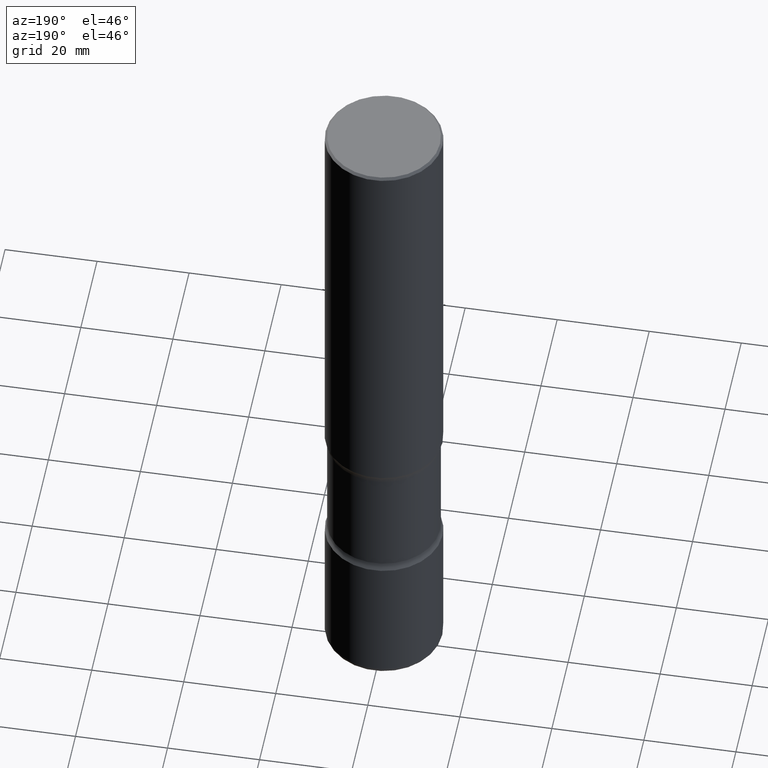
[diagram: clean part render]
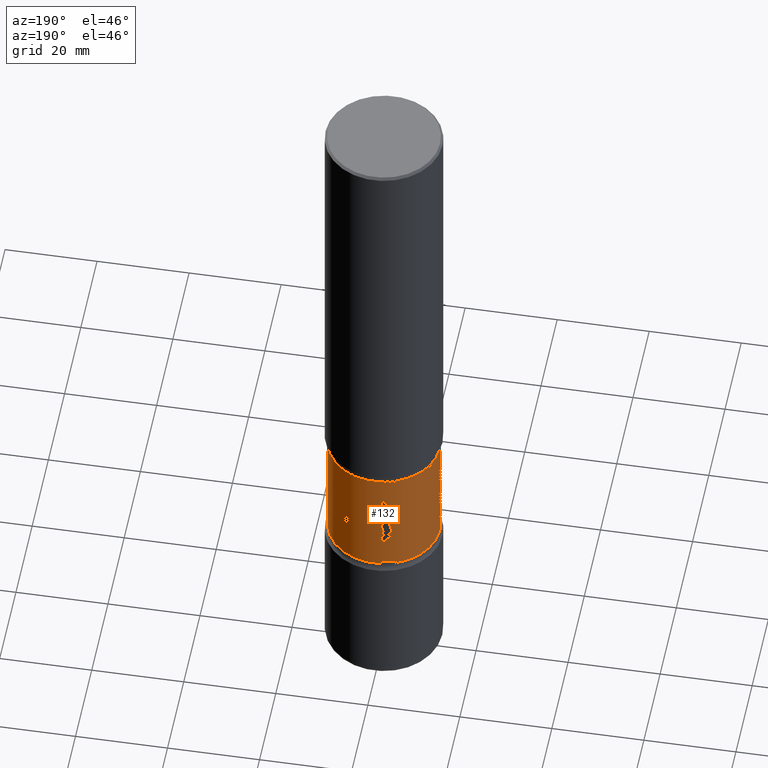
[diagram: same view with one face highlighted and labeled with its STEP entity id]
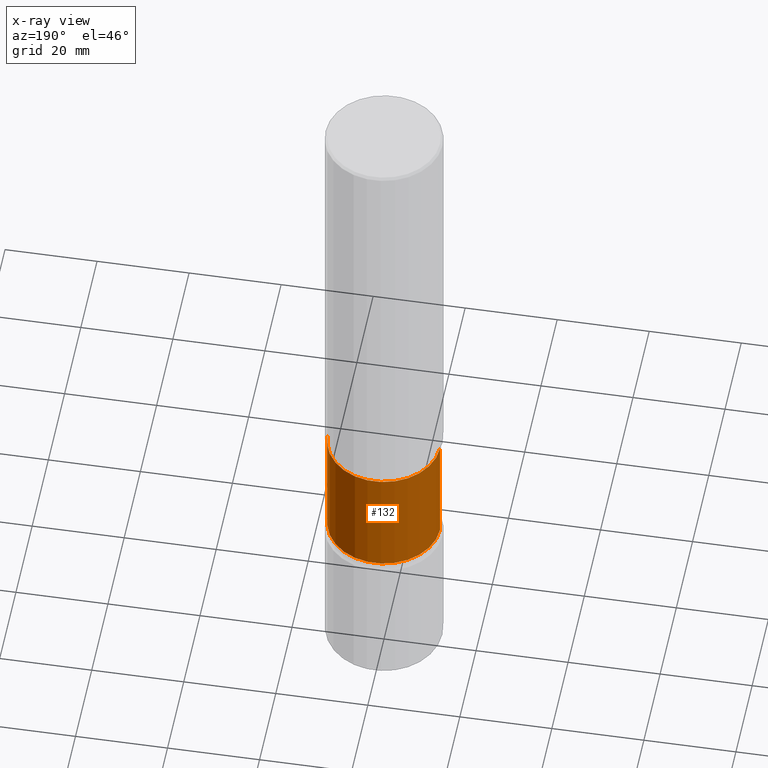
[diagram: x-ray of the same camera — body ghosted, the highlighted face saturated]
A machine part, auxiliary view. The second image highlights one B-rep face of the part: STEP entity #132.
The next image is the same camera in x-ray: the body ghosted, the highlighted face saturated — about 0% of this face is hidden behind the body in this view.
In plain terms, the highlighted cylindrical surface (partial cylindrical patch) has radius 12.192 mm, axis along (-0, 0, 1).
Its self-contained STEP definition (entity closure, byte-faithful):
#10 = CARTESIAN_POINT ( 'NONE',  ( 0.4799999999999999267, -1.969955465909476825E-14, -4.682176700168747985 ) ) ;
#43 = ORIENTED_EDGE ( 'NONE', *, *, #547, .T. ) ;
#51 = CARTESIAN_POINT ( 'NONE',  ( 9.030684186490993510E-29, -1.289342363900598922E-14, -3.692823299831254236 ) ) ;
#55 = AXIS2_PLACEMENT_3D ( 'NONE', #88, #220, #387 ) ;
#88 = CARTESIAN_POINT ( 'NONE',  ( 1.145011706530952997E-28, -1.634773257380536149E-14, -4.682176700168747985 ) ) ;
#103 = EDGE_CURVE ( 'NONE', #473, #492, #318, .T. ) ;
#132 = ADVANCED_FACE ( 'NONE', ( #527 ), #639, .T. ) ;
#136 = CARTESIAN_POINT ( 'NONE',  ( -0.4799999999999999267, -1.298447506143066159E-14, -4.682176700168747985 ) ) ;
#163 = AXIS2_PLACEMENT_3D ( 'NONE', #51, #171, #302 ) ;
#171 = DIRECTION ( 'NONE',  ( -2.445468806185136597E-29, 3.491481338843145583E-15, 1.000000000000000000 ) ) ;
#219 = DIRECTION ( 'NONE',  ( -2.445468806185136877E-29, 3.491481338843145188E-15, 1.000000000000000000 ) ) ;
#220 = DIRECTION ( 'NONE',  ( -2.445468806185136597E-29, 3.491481338843145583E-15, 1.000000000000000000 ) ) ;
#244 = VECTOR ( 'NONE', #343, 39.37007874015748143 ) ;
#279 = CARTESIAN_POINT ( 'NONE',  ( -0.4799999999999998712, -9.246014721657926556E-15, -3.625000000000000888 ) ) ;
#302 = DIRECTION ( 'NONE',  ( 1.000000000000000000, -6.982962677686266711E-15, 0.000000000000000000 ) ) ;
#307 = CIRCLE ( 'NONE', #163, 0.4799999999999998157 ) ;
#317 = VERTEX_POINT ( 'NONE', #362 ) ;
#318 = CIRCLE ( 'NONE', #55, 0.4799999999999999267 ) ;
#331 = EDGE_CURVE ( 'NONE', #411, #317, #307, .T. ) ;
#338 = CARTESIAN_POINT ( 'NONE',  ( 8.864824422421122405E-29, -1.265661985330640574E-14, -3.625000000000000888 ) ) ;
#343 = DIRECTION ( 'NONE',  ( -2.445468806185136877E-29, 3.491481338843145188E-15, 1.000000000000000000 ) ) ;
#362 = CARTESIAN_POINT ( 'NONE',  ( -0.4799999999999998157, -9.293362340931705846E-15, -3.692823299831254236 ) ) ;
#379 = ORIENTED_EDGE ( 'NONE', *, *, #331, .F. ) ;
#387 = DIRECTION ( 'NONE',  ( 1.000000000000000000, -6.982962677686265133E-15, 0.000000000000000000 ) ) ;
#392 = LINE ( 'NONE', #594, #749 ) ;
#400 = DIRECTION ( 'NONE',  ( 1.000000000000000000, -6.982962677686265922E-15, 0.000000000000000000 ) ) ;
#402 = LINE ( 'NONE', #279, #244 ) ;
#411 = VERTEX_POINT ( 'NONE', #568 ) ;
#473 = VERTEX_POINT ( 'NONE', #10 ) ;
#492 = VERTEX_POINT ( 'NONE', #136 ) ;
#527 = FACE_OUTER_BOUND ( 'NONE', #794, .T. ) ;
#547 = EDGE_CURVE ( 'NONE', #492, #317, #402, .T. ) ;
#553 = ORIENTED_EDGE ( 'NONE', *, *, #103, .T. ) ;
#568 = CARTESIAN_POINT ( 'NONE',  ( 0.4799999999999998157, -1.624524572429539598E-14, -3.692823299831254236 ) ) ;
#587 = DIRECTION ( 'NONE',  ( -2.445468806185136597E-29, 3.491481338843145583E-15, 1.000000000000000000 ) ) ;
#594 = CARTESIAN_POINT ( 'NONE',  ( 0.4799999999999998712, -1.600844193859581408E-14, -3.625000000000000888 ) ) ;
#618 = EDGE_CURVE ( 'NONE', #473, #411, #392, .T. ) ;
#639 = CYLINDRICAL_SURFACE ( 'NONE', #771, 0.4799999999999998712 ) ;
#667 = ORIENTED_EDGE ( 'NONE', *, *, #618, .F. ) ;
#749 = VECTOR ( 'NONE', #219, 39.37007874015748143 ) ;
#771 = AXIS2_PLACEMENT_3D ( 'NONE', #338, #587, #400 ) ;
#794 = EDGE_LOOP ( 'NONE', ( #553, #43, #379, #667 ) ) ;